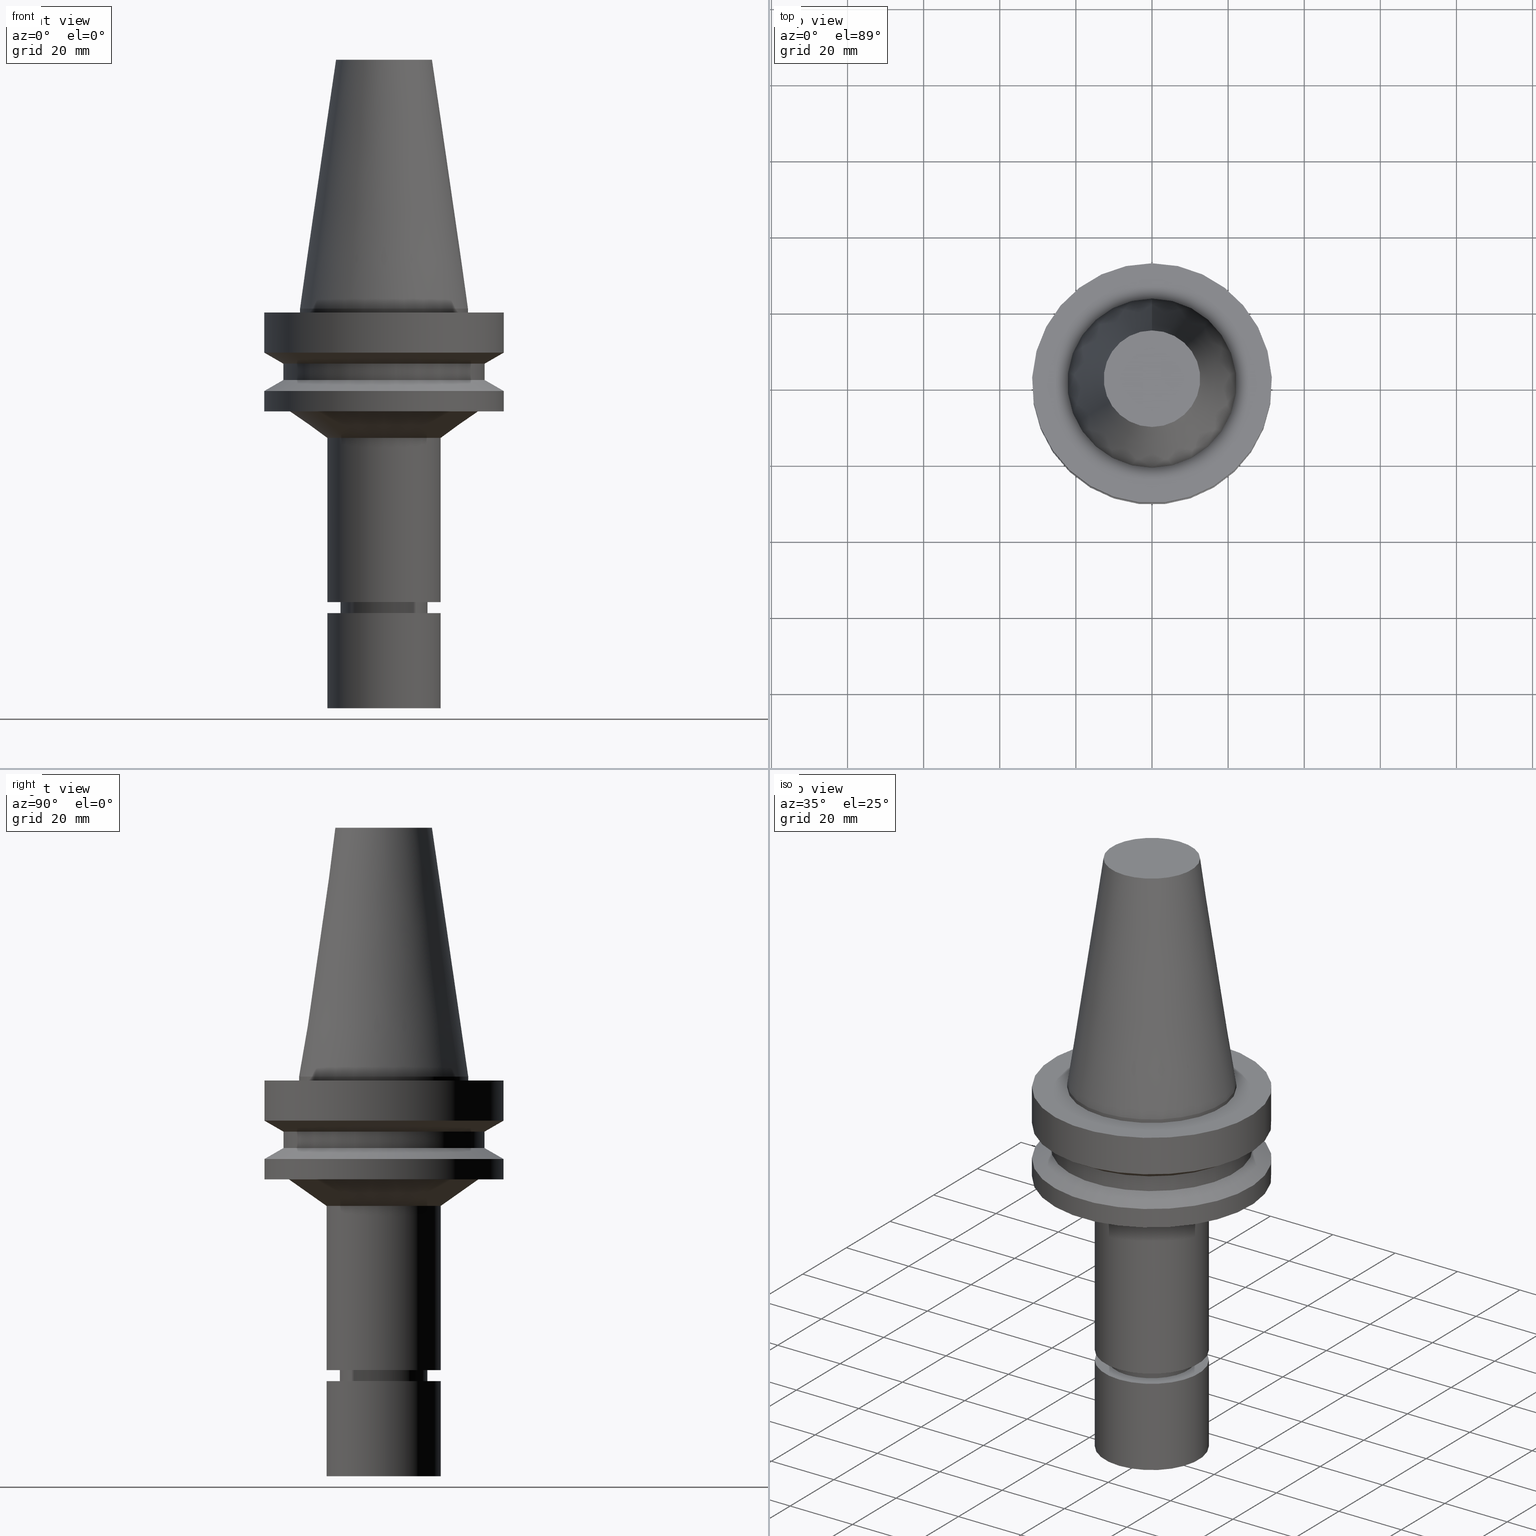
[diagram: canonical four-view strip — front | top / right | iso, engineering-drawing reading convention]
A machine part, canonical four-view strip (front | top / right | iso — engineering-drawing reading convention). The complete STEP part file that produces these views, byte-faithful:
ISO-10303-21;
HEADER;
FILE_DESCRIPTION((''),'1');
FILE_NAME('V:/90_\X2\53D65F9730C730FC30BF\X0\/00_\X2\6DE18DEF30C730FC30BF\X0\/ALL/BBT-BKUS\X2\FF76FF80FF9BFF78FF9E752852A05DE556F3\X0\201801/BBT40-MEGAER/BBT40-MEGAER16-105NL.stp','2018-02-07T01:45:43',(''),(''),'Spatial Interop R21 SP3','Kubotek KeyCreator 2011 V10.0.2 (22737)',' ');
FILE_SCHEMA(('automotive_design'));
ENDSEC;
DATA;
#1=MECHANICAL_DESIGN_GEOMETRIC_PRESENTATION_REPRESENTATION(' ',(#14,#15,#16,#17,#18,#19,#20,#21,#22,#23,#24,#25,#26,#27,#28,#29,#30,#31,#32,#33,#34,#35,#36,#37,#38,#39,#40,#41,#42,#43,#44,#45,#46,#47,#48,#49,#50,#51,#52,#53,#54,#55),#10);
#2=PRODUCT_DEFINITION_CONTEXT('',#56,'design');
#3=APPLICATION_PROTOCOL_DEFINITION('INTERNATIONAL STANDARD','automotive_design',1994,#56);
#4=PRODUCT_CATEGORY_RELATIONSHIP('NONE','NONE',#57,#58);
#5=SHAPE_DEFINITION_REPRESENTATION(#59,#60);
#6=PRODUCT_DEFINITION_CONTEXT('',#61,'design');
#7=APPLICATION_PROTOCOL_DEFINITION('INTERNATIONAL STANDARD','automotive_design',1994,#61);
#8=PRODUCT_CATEGORY_RELATIONSHIP('NONE','NONE',#62,#63);
#9=SHAPE_DEFINITION_REPRESENTATION(#64,#65);
#10= (GEOMETRIC_REPRESENTATION_CONTEXT(3)GLOBAL_UNCERTAINTY_ASSIGNED_CONTEXT((#68))GLOBAL_UNIT_ASSIGNED_CONTEXT((#70,#71,#72))REPRESENTATION_CONTEXT('NONE','WORKSPACE'));
#14=STYLED_ITEM('',(#74,#75),#76);
#15=STYLED_ITEM('',(#77),#78);
#16=STYLED_ITEM('',(#79,#80),#81);
#17=STYLED_ITEM('',(#82,#83),#84);
#18=STYLED_ITEM('',(#85,#86),#87);
#19=STYLED_ITEM('',(#88),#89);
#20=STYLED_ITEM('',(#90),#91);
#21=STYLED_ITEM('',(#92),#93);
#22=STYLED_ITEM('',(#94,#95),#96);
#23=STYLED_ITEM('',(#97),#98);
#24=STYLED_ITEM('',(#99),#100);
#25=STYLED_ITEM('',(#101,#102),#103);
#26=STYLED_ITEM('',(#104,#105),#106);
#27=STYLED_ITEM('',(#107),#108);
#28=STYLED_ITEM('',(#109),#110);
#29=STYLED_ITEM('',(#111,#112),#113);
#30=STYLED_ITEM('',(#114),#115);
#31=STYLED_ITEM('',(#116,#117),#118);
#32=STYLED_ITEM('',(#119,#120),#121);
#33=STYLED_ITEM('',(#122,#123),#124);
#34=STYLED_ITEM('',(#125),#126);
#35=STYLED_ITEM('',(#127,#128),#129);
#36=STYLED_ITEM('',(#130,#131),#132);
#37=STYLED_ITEM('',(#133,#134),#135);
#38=STYLED_ITEM('',(#136,#137),#138);
#39=STYLED_ITEM('',(#139,#140),#141);
#40=STYLED_ITEM('',(#142,#143),#144);
#41=STYLED_ITEM('',(#145,#146),#147);
#42=STYLED_ITEM('',(#148),#149);
#43=STYLED_ITEM('',(#150,#151),#152);
#44=STYLED_ITEM('',(#153),#154);
#45=STYLED_ITEM('',(#155,#156),#157);
#46=STYLED_ITEM('',(#158),#159);
#47=STYLED_ITEM('',(#160,#161),#162);
#48=STYLED_ITEM('',(#163),#164);
#49=STYLED_ITEM('',(#165),#166);
#50=STYLED_ITEM('',(#167,#168),#169);
#51=STYLED_ITEM('',(#170,#171),#172);
#52=STYLED_ITEM('',(#173),#174);
#53=STYLED_ITEM('',(#175),#176);
#54=STYLED_ITEM('',(#177),#178);
#55=STYLED_ITEM('',(#179),#180);
#56=APPLICATION_CONTEXT(' ');
#57=PRODUCT_CATEGORY('part','NONE');
#58=PRODUCT_RELATED_PRODUCT_CATEGORY('detail',' ',(#181));
#59=PRODUCT_DEFINITION_SHAPE('NONE','NONE',#182);
#60=ADVANCED_BREP_SHAPE_REPRESENTATION('Unnamed[1]',(#103,#183),#10);
#61=APPLICATION_CONTEXT(' ');
#62=PRODUCT_CATEGORY('part','NONE');
#63=PRODUCT_RELATED_PRODUCT_CATEGORY('detail',' ',(#184));
#64=PRODUCT_DEFINITION_SHAPE('NONE','NONE',#185);
#65=ADVANCED_BREP_SHAPE_REPRESENTATION('Unnamed[1]',(#144,#186),#10);
#68=UNCERTAINTY_MEASURE_WITH_UNIT(LENGTH_MEASURE(1.0E-006),#70,'','');
#70= (CONVERSION_BASED_UNIT('MILLIMETRE',#189)LENGTH_UNIT()NAMED_UNIT(#192));
#71= (NAMED_UNIT(#194)PLANE_ANGLE_UNIT()SI_UNIT($,.RADIAN.));
#72= (NAMED_UNIT(#194)SOLID_ANGLE_UNIT()SI_UNIT($,.STERADIAN.));
#74=PRESENTATION_STYLE_ASSIGNMENT((#200));
#75=PRESENTATION_STYLE_ASSIGNMENT((#201));
#76=ADVANCED_FACE('Unnamed[1]',(#202,#203),#204,.T.);
#77=PRESENTATION_STYLE_ASSIGNMENT((#205));
#78=EDGE_CURVE('Unnamed[1]',#206,#206,#207,.T.);
#79=PRESENTATION_STYLE_ASSIGNMENT((#208));
#80=PRESENTATION_STYLE_ASSIGNMENT((#209));
#81=ADVANCED_FACE('Unnamed[1]',(#210),#211,.T.);
#82=PRESENTATION_STYLE_ASSIGNMENT((#212));
#83=PRESENTATION_STYLE_ASSIGNMENT((#213));
#84=ADVANCED_FACE('Unnamed[1]',(#214,#215),#216,.T.);
#85=PRESENTATION_STYLE_ASSIGNMENT((#217));
#86=PRESENTATION_STYLE_ASSIGNMENT((#218));
#87=ADVANCED_FACE('Unnamed[1]',(#219,#220),#221,.T.);
#88=PRESENTATION_STYLE_ASSIGNMENT((#222));
#89=EDGE_CURVE('Unnamed[1]',#223,#223,#224,.T.);
#90=PRESENTATION_STYLE_ASSIGNMENT((#225));
#91=EDGE_CURVE('Unnamed[1]',#226,#226,#227,.T.);
#92=PRESENTATION_STYLE_ASSIGNMENT((#228));
#93=EDGE_CURVE('Unnamed[1]',#229,#229,#230,.T.);
#94=PRESENTATION_STYLE_ASSIGNMENT((#231));
#95=PRESENTATION_STYLE_ASSIGNMENT((#232));
#96=ADVANCED_FACE('Unnamed[1]',(#233,#234),#235,.T.);
#97=PRESENTATION_STYLE_ASSIGNMENT((#236));
#98=EDGE_CURVE('Unnamed[1]',#237,#237,#238,.T.);
#99=PRESENTATION_STYLE_ASSIGNMENT((#239));
#100=EDGE_CURVE('Unnamed[1]',#240,#240,#241,.T.);
#101=PRESENTATION_STYLE_ASSIGNMENT((#242));
#102=PRESENTATION_STYLE_ASSIGNMENT((#243));
#103=MANIFOLD_SOLID_BREP('Unnamed[1]',#244);
#104=PRESENTATION_STYLE_ASSIGNMENT((#245));
#105=PRESENTATION_STYLE_ASSIGNMENT((#246));
#106=ADVANCED_FACE('Unnamed[1]',(#247,#248),#249,.T.);
#107=PRESENTATION_STYLE_ASSIGNMENT((#250));
#108=EDGE_CURVE('Unnamed[1]',#251,#251,#252,.T.);
#109=PRESENTATION_STYLE_ASSIGNMENT((#253));
#110=EDGE_CURVE('Unnamed[1]',#254,#254,#255,.T.);
#111=PRESENTATION_STYLE_ASSIGNMENT((#256));
#112=PRESENTATION_STYLE_ASSIGNMENT((#257));
#113=ADVANCED_FACE('Unnamed[1]',(#258,#259),#260,.T.);
#114=PRESENTATION_STYLE_ASSIGNMENT((#261));
#115=EDGE_CURVE('Unnamed[1]',#262,#262,#263,.T.);
#116=PRESENTATION_STYLE_ASSIGNMENT((#264));
#117=PRESENTATION_STYLE_ASSIGNMENT((#265));
#118=ADVANCED_FACE('Unnamed[1]',(#266,#267),#268,.T.);
#119=PRESENTATION_STYLE_ASSIGNMENT((#269));
#120=PRESENTATION_STYLE_ASSIGNMENT((#270));
#121=ADVANCED_FACE('Unnamed[1]',(#271,#272),#273,.T.);
#122=PRESENTATION_STYLE_ASSIGNMENT((#274));
#123=PRESENTATION_STYLE_ASSIGNMENT((#275));
#124=ADVANCED_FACE('Unnamed[1]',(#276),#277,.T.);
#125=PRESENTATION_STYLE_ASSIGNMENT((#278));
#126=EDGE_CURVE('Unnamed[1]',#279,#279,#280,.T.);
#127=PRESENTATION_STYLE_ASSIGNMENT((#281));
#128=PRESENTATION_STYLE_ASSIGNMENT((#282));
#129=ADVANCED_FACE('Unnamed[1]',(#283,#284),#285,.T.);
#130=PRESENTATION_STYLE_ASSIGNMENT((#286));
#131=PRESENTATION_STYLE_ASSIGNMENT((#287));
#132=ADVANCED_FACE('Unnamed[1]',(#288,#289),#290,.T.);
#133=PRESENTATION_STYLE_ASSIGNMENT((#291));
#134=PRESENTATION_STYLE_ASSIGNMENT((#292));
#135=ADVANCED_FACE('Unnamed[1]',(#293,#294),#295,.T.);
#136=PRESENTATION_STYLE_ASSIGNMENT((#296));
#137=PRESENTATION_STYLE_ASSIGNMENT((#297));
#138=ADVANCED_FACE('Unnamed[1]',(#298,#299),#300,.T.);
#139=PRESENTATION_STYLE_ASSIGNMENT((#301));
#140=PRESENTATION_STYLE_ASSIGNMENT((#302));
#141=ADVANCED_FACE('Unnamed[1]',(#303,#304),#305,.T.);
#142=PRESENTATION_STYLE_ASSIGNMENT((#306));
#143=PRESENTATION_STYLE_ASSIGNMENT((#307));
#144=MANIFOLD_SOLID_BREP('Unnamed[1]',#308);
#145=PRESENTATION_STYLE_ASSIGNMENT((#309));
#146=PRESENTATION_STYLE_ASSIGNMENT((#310));
#147=ADVANCED_FACE('Unnamed[1]',(#311,#312),#313,.T.);
#148=PRESENTATION_STYLE_ASSIGNMENT((#314));
#149=EDGE_CURVE('Unnamed[1]',#315,#315,#316,.T.);
#150=PRESENTATION_STYLE_ASSIGNMENT((#317));
#151=PRESENTATION_STYLE_ASSIGNMENT((#318));
#152=ADVANCED_FACE('Unnamed[1]',(#319),#320,.T.);
#153=PRESENTATION_STYLE_ASSIGNMENT((#321));
#154=EDGE_CURVE('Unnamed[1]',#322,#322,#323,.T.);
#155=PRESENTATION_STYLE_ASSIGNMENT((#324));
#156=PRESENTATION_STYLE_ASSIGNMENT((#325));
#157=ADVANCED_FACE('Unnamed[1]',(#326,#327),#328,.T.);
#158=PRESENTATION_STYLE_ASSIGNMENT((#329));
#159=EDGE_CURVE('Unnamed[1]',#330,#330,#331,.T.);
#160=PRESENTATION_STYLE_ASSIGNMENT((#332));
#161=PRESENTATION_STYLE_ASSIGNMENT((#333));
#162=ADVANCED_FACE('Unnamed[1]',(#334),#335,.T.);
#163=PRESENTATION_STYLE_ASSIGNMENT((#336));
#164=EDGE_CURVE('Unnamed[1]',#337,#337,#338,.T.);
#165=PRESENTATION_STYLE_ASSIGNMENT((#339));
#166=EDGE_CURVE('Unnamed[1]',#340,#340,#341,.T.);
#167=PRESENTATION_STYLE_ASSIGNMENT((#342));
#168=PRESENTATION_STYLE_ASSIGNMENT((#343));
#169=ADVANCED_FACE('Unnamed[1]',(#344,#345),#346,.T.);
#170=PRESENTATION_STYLE_ASSIGNMENT((#347));
#171=PRESENTATION_STYLE_ASSIGNMENT((#348));
#172=ADVANCED_FACE('Unnamed[1]',(#349,#350),#351,.T.);
#173=PRESENTATION_STYLE_ASSIGNMENT((#352));
#174=EDGE_CURVE('Unnamed[1]',#353,#353,#354,.T.);
#175=PRESENTATION_STYLE_ASSIGNMENT((#355));
#176=EDGE_CURVE('Unnamed[1]',#356,#356,#357,.T.);
#177=PRESENTATION_STYLE_ASSIGNMENT((#358));
#178=EDGE_CURVE('Unnamed[1]',#359,#359,#360,.T.);
#179=PRESENTATION_STYLE_ASSIGNMENT((#361));
#180=EDGE_CURVE('Unnamed[1]',#362,#362,#363,.T.);
#181=PRODUCT('Unnamed[1]','Unnamed[1]','PART-Unnamed[1]-DESC',(#364));
#182=PRODUCT_DEFINITION('NONE','NONE',#365,#2);
#183=AXIS2_PLACEMENT_3D('',#366,#367,#368);
#184=PRODUCT('Unnamed[1]','Unnamed[1]','PART-Unnamed[1]-DESC',(#369));
#185=PRODUCT_DEFINITION('NONE','NONE',#370,#6);
#186=AXIS2_PLACEMENT_3D('',#371,#372,#373);
#189=LENGTH_MEASURE_WITH_UNIT(LENGTH_MEASURE(1.0),#374);
#192=DIMENSIONAL_EXPONENTS(1.0,0.0,0.0,0.0,0.0,0.0,0.0);
#194=DIMENSIONAL_EXPONENTS(0.0,0.0,0.0,0.0,0.0,0.0,0.0);
#200=SURFACE_STYLE_USAGE(.BOTH.,#375);
#201=CURVE_STYLE('',#376,POSITIVE_LENGTH_MEASURE(1000.0),#377);
#202=FACE_BOUND('',#378,.T.);
#203=FACE_BOUND('',#379,.T.);
#204=CONICAL_SURFACE('',#380,19.9344124647526,0.956240827688237);
#205=CURVE_STYLE('',#381,POSITIVE_LENGTH_MEASURE(1000.0),#382);
#206=VERTEX_POINT('',#383);
#207=CIRCLE('',#384,9.89999999999953);
#208=SURFACE_STYLE_USAGE(.BOTH.,#385);
#209=CURVE_STYLE('',#386,POSITIVE_LENGTH_MEASURE(1000.0),#387);
#210=FACE_OUTER_BOUND('',#388,.T.);
#211=PLANE('',#389);
#212=SURFACE_STYLE_USAGE(.BOTH.,#390);
#213=CURVE_STYLE('',#391,POSITIVE_LENGTH_MEASURE(1000.0),#392);
#214=FACE_BOUND('',#393,.T.);
#215=FACE_OUTER_BOUND('',#394,.T.);
#216=PLANE('',#395);
#217=SURFACE_STYLE_USAGE(.BOTH.,#396);
#218=CURVE_STYLE('',#397,POSITIVE_LENGTH_MEASURE(1000.0),#398);
#219=FACE_BOUND('',#399,.T.);
#220=FACE_BOUND('',#400,.T.);
#221=CYLINDRICAL_SURFACE('',#401,11.4999999999963);
#222=CURVE_STYLE('',#402,POSITIVE_LENGTH_MEASURE(1000.0),#403);
#223=VERTEX_POINT('',#404);
#224=CIRCLE('',#405,31.5000000000003);
#225=CURVE_STYLE('',#406,POSITIVE_LENGTH_MEASURE(1000.0),#407);
#226=VERTEX_POINT('',#408);
#227=CIRCLE('',#409,26.4999999999994);
#228=CURVE_STYLE('',#410,POSITIVE_LENGTH_MEASURE(1000.0),#411);
#229=VERTEX_POINT('',#412);
#230=CIRCLE('',#413,15.0000000000004);
#231=SURFACE_STYLE_USAGE(.BOTH.,#414);
#232=CURVE_STYLE('',#415,POSITIVE_LENGTH_MEASURE(1000.0),#416);
#233=FACE_BOUND('',#417,.T.);
#234=FACE_BOUND('',#418,.T.);
#235=CYLINDRICAL_SURFACE('',#419,26.4999999999997);
#236=CURVE_STYLE('',#420,POSITIVE_LENGTH_MEASURE(1000.0),#421);
#237=VERTEX_POINT('',#422);
#238=CIRCLE('',#423,11.4999999999906);
#239=CURVE_STYLE('',#424,POSITIVE_LENGTH_MEASURE(1000.0),#425);
#240=VERTEX_POINT('',#426);
#241=CIRCLE('',#427,11.0000000000002);
#242=SURFACE_STYLE_USAGE(.BOTH.,#428);
#243=CURVE_STYLE('',#429,POSITIVE_LENGTH_MEASURE(1000.0),#430);
#244=CLOSED_SHELL('',(#81,#157,#138,#132,#129,#147,#96,#172,#121,#84,#76,#118,#106,#87,#113,#141,#135,#162));
#245=SURFACE_STYLE_USAGE(.BOTH.,#431);
#246=CURVE_STYLE('',#432,POSITIVE_LENGTH_MEASURE(1000.0),#433);
#247=FACE_BOUND('',#434,.T.);
#248=FACE_OUTER_BOUND('',#435,.T.);
#249=PLANE('',#436);
#250=CURVE_STYLE('',#437,POSITIVE_LENGTH_MEASURE(1000.0),#438);
#251=VERTEX_POINT('',#439);
#252=CIRCLE('',#440,24.8688249295048);
#253=CURVE_STYLE('',#441,POSITIVE_LENGTH_MEASURE(1000.0),#442);
#254=VERTEX_POINT('',#443);
#255=CIRCLE('',#444,31.4999999999996);
#256=SURFACE_STYLE_USAGE(.BOTH.,#445);
#257=CURVE_STYLE('',#446,POSITIVE_LENGTH_MEASURE(1000.0),#447);
#258=FACE_BOUND('',#448,.T.);
#259=FACE_BOUND('',#449,.T.);
#260=CONICAL_SURFACE('',#450,11.2500000000009,1.04719755118913);
#261=CURVE_STYLE('',#451,POSITIVE_LENGTH_MEASURE(1000.0),#452);
#262=VERTEX_POINT('',#453);
#263=CIRCLE('',#454,26.5);
#264=SURFACE_STYLE_USAGE(.BOTH.,#455);
#265=CURVE_STYLE('',#456,POSITIVE_LENGTH_MEASURE(1000.0),#457);
#266=FACE_BOUND('',#458,.T.);
#267=FACE_BOUND('',#459,.T.);
#268=CYLINDRICAL_SURFACE('',#460,15.0000000000002);
#269=SURFACE_STYLE_USAGE(.BOTH.,#461);
#270=CURVE_STYLE('',#462,POSITIVE_LENGTH_MEASURE(1000.0),#463);
#271=FACE_BOUND('',#464,.T.);
#272=FACE_BOUND('',#465,.T.);
#273=CYLINDRICAL_SURFACE('',#466,31.5000000000005);
#274=SURFACE_STYLE_USAGE(.BOTH.,#467);
#275=CURVE_STYLE('',#468,POSITIVE_LENGTH_MEASURE(1000.0),#469);
#276=FACE_OUTER_BOUND('',#470,.T.);
#277=PLANE('',#471);
#278=CURVE_STYLE('',#472,POSITIVE_LENGTH_MEASURE(1000.0),#473);
#279=VERTEX_POINT('',#474);
#280=CIRCLE('',#475,12.6875000000001);
#281=SURFACE_STYLE_USAGE(.BOTH.,#476);
#282=CURVE_STYLE('',#477,POSITIVE_LENGTH_MEASURE(1000.0),#478);
#283=FACE_BOUND('',#479,.T.);
#284=FACE_BOUND('',#480,.T.);
#285=CYLINDRICAL_SURFACE('',#481,31.5);
#286=SURFACE_STYLE_USAGE(.BOTH.,#482);
#287=CURVE_STYLE('',#483,POSITIVE_LENGTH_MEASURE(1000.0),#484);
#288=FACE_OUTER_BOUND('',#485,.T.);
#289=FACE_BOUND('',#486,.T.);
#290=PLANE('',#487);
#291=SURFACE_STYLE_USAGE(.BOTH.,#488);
#292=CURVE_STYLE('',#489,POSITIVE_LENGTH_MEASURE(1000.0),#490);
#293=FACE_BOUND('',#491,.T.);
#294=FACE_BOUND('',#492,.T.);
#295=CONICAL_SURFACE('',#493,10.4499999999999,0.523598775598206);
#296=SURFACE_STYLE_USAGE(.BOTH.,#494);
#297=CURVE_STYLE('',#495,POSITIVE_LENGTH_MEASURE(1000.0),#496);
#298=FACE_BOUND('',#497,.T.);
#299=FACE_BOUND('',#498,.T.);
#300=CYLINDRICAL_SURFACE('',#499,22.225);
#301=SURFACE_STYLE_USAGE(.BOTH.,#500);
#302=CURVE_STYLE('',#501,POSITIVE_LENGTH_MEASURE(1000.0),#502);
#303=FACE_BOUND('',#503,.T.);
#304=FACE_BOUND('',#504,.T.);
#305=CYLINDRICAL_SURFACE('',#505,11.0);
#306=SURFACE_STYLE_USAGE(.BOTH.,#506);
#307=CURVE_STYLE('',#507,POSITIVE_LENGTH_MEASURE(1000.0),#508);
#308=CLOSED_SHELL('',(#124,#152,#169));
#309=SURFACE_STYLE_USAGE(.BOTH.,#509);
#310=CURVE_STYLE('',#510,POSITIVE_LENGTH_MEASURE(1000.0),#511);
#311=FACE_BOUND('',#512,.T.);
#312=FACE_BOUND('',#513,.T.);
#313=CONICAL_SURFACE('',#514,28.9999999999998,1.04719755119657);
#314=CURVE_STYLE('',#515,POSITIVE_LENGTH_MEASURE(1000.0),#516);
#315=VERTEX_POINT('',#517);
#316=CIRCLE('',#518,10.9999999999998);
#317=SURFACE_STYLE_USAGE(.BOTH.,#519);
#318=CURVE_STYLE('',#520,POSITIVE_LENGTH_MEASURE(1000.0),#521);
#319=FACE_OUTER_BOUND('',#522,.T.);
#320=PLANE('',#523);
#321=CURVE_STYLE('',#524,POSITIVE_LENGTH_MEASURE(1000.0),#525);
#322=VERTEX_POINT('',#526);
#323=CIRCLE('',#527,15.0);
#324=SURFACE_STYLE_USAGE(.BOTH.,#528);
#325=CURVE_STYLE('',#529,POSITIVE_LENGTH_MEASURE(1000.0),#530);
#326=FACE_BOUND('',#531,.T.);
#327=FACE_BOUND('',#532,.T.);
#328=CONICAL_SURFACE('',#533,17.45625,0.144812498238936);
#329=CURVE_STYLE('',#534,POSITIVE_LENGTH_MEASURE(1000.0),#535);
#330=VERTEX_POINT('',#536);
#331=CIRCLE('',#537,11.500000000002);
#332=SURFACE_STYLE_USAGE(.BOTH.,#538);
#333=CURVE_STYLE('',#539,POSITIVE_LENGTH_MEASURE(1000.0),#540);
#334=FACE_OUTER_BOUND('',#541,.T.);
#335=PLANE('',#542);
#336=CURVE_STYLE('',#543,POSITIVE_LENGTH_MEASURE(1000.0),#544);
#337=VERTEX_POINT('',#545);
#338=CIRCLE('',#546,31.5000000000003);
#339=CURVE_STYLE('',#547,POSITIVE_LENGTH_MEASURE(1000.0),#548);
#340=VERTEX_POINT('',#549);
#341=CIRCLE('',#550,31.5000000000006);
#342=SURFACE_STYLE_USAGE(.BOTH.,#551);
#343=CURVE_STYLE('',#552,POSITIVE_LENGTH_MEASURE(1000.0),#553);
#344=FACE_BOUND('',#554,.T.);
#345=FACE_BOUND('',#555,.T.);
#346=CYLINDRICAL_SURFACE('',#556,15.0);
#347=SURFACE_STYLE_USAGE(.BOTH.,#557);
#348=CURVE_STYLE('',#558,POSITIVE_LENGTH_MEASURE(1000.0),#559);
#349=FACE_BOUND('',#560,.T.);
#350=FACE_BOUND('',#561,.T.);
#351=CONICAL_SURFACE('',#562,29.0000000000003,1.04719755119651);
#352=CURVE_STYLE('',#563,POSITIVE_LENGTH_MEASURE(1000.0),#564);
#353=VERTEX_POINT('',#565);
#354=CIRCLE('',#566,22.225);
#355=CURVE_STYLE('',#567,POSITIVE_LENGTH_MEASURE(1000.0),#568);
#356=VERTEX_POINT('',#569);
#357=CIRCLE('',#570,22.225);
#358=CURVE_STYLE('',#571,POSITIVE_LENGTH_MEASURE(1000.0),#572);
#359=VERTEX_POINT('',#573);
#360=CIRCLE('',#574,14.9999999999999);
#361=CURVE_STYLE('',#575,POSITIVE_LENGTH_MEASURE(1000.0),#576);
#362=VERTEX_POINT('',#577);
#363=CIRCLE('',#578,15.0);
#364=PRODUCT_CONTEXT('',#56,'mechanical');
#365=PRODUCT_DEFINITION_FORMATION_WITH_SPECIFIED_SOURCE(' ','NONE',#181,.NOT_KNOWN.);
#366=CARTESIAN_POINT('',(0.0,0.0,0.0));
#367=DIRECTION('',(0.0,0.0,1.0));
#368=DIRECTION('',(1.0,0.0,0.0));
#369=PRODUCT_CONTEXT('',#61,'mechanical');
#370=PRODUCT_DEFINITION_FORMATION_WITH_SPECIFIED_SOURCE(' ','NONE',#184,.NOT_KNOWN.);
#371=CARTESIAN_POINT('',(0.0,0.0,0.0));
#372=DIRECTION('',(0.0,0.0,1.0));
#373=DIRECTION('',(1.0,0.0,0.0));
#374= (NAMED_UNIT(#192)LENGTH_UNIT()SI_UNIT(.MILLI.,.METRE.));
#375=SURFACE_SIDE_STYLE('',(#580));
#376=DRAUGHTING_PRE_DEFINED_CURVE_FONT('continuous');
#377=COLOUR_RGB('',0.0,1.0,0.0);
#378=EDGE_LOOP('',(#581));
#379=EDGE_LOOP('',(#582));
#380=AXIS2_PLACEMENT_3D('',#583,#584,#585);
#381=DRAUGHTING_PRE_DEFINED_CURVE_FONT('continuous');
#382=COLOUR_RGB('',0.0,1.0,0.0);
#383=CARTESIAN_POINT('',(5.89055110389872E-015,9.8999999999996,-96.1999999999992));
#384=AXIS2_PLACEMENT_3D('',#586,#587,#588);
#385=SURFACE_SIDE_STYLE('',(#589));
#386=DRAUGHTING_PRE_DEFINED_CURVE_FONT('continuous');
#387=COLOUR_RGB('',0.0,1.0,0.0);
#388=EDGE_LOOP('',(#590));
#389=AXIS2_PLACEMENT_3D('',#591,#592,#593);
#390=SURFACE_SIDE_STYLE('',(#594));
#391=DRAUGHTING_PRE_DEFINED_CURVE_FONT('continuous');
#392=COLOUR_RGB('',0.0,1.0,0.0);
#393=EDGE_LOOP('',(#595));
#394=EDGE_LOOP('',(#596));
#395=AXIS2_PLACEMENT_3D('',#597,#598,#599);
#396=SURFACE_SIDE_STYLE('',(#600));
#397=DRAUGHTING_PRE_DEFINED_CURVE_FONT('continuous');
#398=COLOUR_RGB('',0.0,1.0,0.0);
#399=EDGE_LOOP('',(#601));
#400=EDGE_LOOP('',(#602));
#401=AXIS2_PLACEMENT_3D('',#603,#604,#605);
#402=DRAUGHTING_PRE_DEFINED_CURVE_FONT('continuous');
#403=COLOUR_RGB('',0.0,1.0,0.0);
#404=CARTESIAN_POINT('',(1.65327317884891E-015,31.5000000000004,-26.9999999999998));
#405=AXIS2_PLACEMENT_3D('',#606,#607,#608);
#406=DRAUGHTING_PRE_DEFINED_CURVE_FONT('continuous');
#407=COLOUR_RGB('',0.0,1.0,0.0);
#408=CARTESIAN_POINT('',(8.8494551369045E-016,26.4999999999995,-14.4522569986152));
#409=AXIS2_PLACEMENT_3D('',#609,#610,#611);
#410=DRAUGHTING_PRE_DEFINED_CURVE_FONT('continuous');
#411=COLOUR_RGB('',0.0,1.0,0.0);
#412=CARTESIAN_POINT('',(2.07973442388956E-015,15.0000000000004,-33.9646406676204));
#413=AXIS2_PLACEMENT_3D('',#612,#613,#614);
#414=SURFACE_SIDE_STYLE('',(#615));
#415=DRAUGHTING_PRE_DEFINED_CURVE_FONT('continuous');
#416=COLOUR_RGB('',0.0,1.0,0.0);
#417=EDGE_LOOP('',(#616));
#418=EDGE_LOOP('',(#617));
#419=AXIS2_PLACEMENT_3D('',#618,#619,#620);
#420=DRAUGHTING_PRE_DEFINED_CURVE_FONT('continuous');
#421=COLOUR_RGB('',0.0,1.0,0.0);
#422=CARTESIAN_POINT('',(4.72101341071305E-015,11.4999999999907,-77.1000000000001));
#423=AXIS2_PLACEMENT_3D('',#621,#622,#623);
#424=DRAUGHTING_PRE_DEFINED_CURVE_FONT('continuous');
#425=COLOUR_RGB('',0.0,1.0,0.0);
#426=CARTESIAN_POINT('',(5.77388782763889E-015,11.0000000000003,-94.2947441116719));
#427=AXIS2_PLACEMENT_3D('',#624,#625,#626);
#428=SURFACE_SIDE_STYLE('',(#627));
#429=DRAUGHTING_PRE_DEFINED_CURVE_FONT('continuous');
#430=COLOUR_RGB('',0.0,1.0,0.0);
#431=SURFACE_SIDE_STYLE('',(#628));
#432=DRAUGHTING_PRE_DEFINED_CURVE_FONT('continuous');
#433=COLOUR_RGB('',0.0,1.0,0.0);
#434=EDGE_LOOP('',(#629));
#435=EDGE_LOOP('',(#630));
#436=AXIS2_PLACEMENT_3D('',#631,#632,#633);
#437=DRAUGHTING_PRE_DEFINED_CURVE_FONT('continuous');
#438=COLOUR_RGB('',0.0,1.0,0.0);
#439=CARTESIAN_POINT('',(1.65327317884891E-015,24.8688249295049,-26.9999999999998));
#440=AXIS2_PLACEMENT_3D('',#634,#635,#636);
#441=DRAUGHTING_PRE_DEFINED_CURVE_FONT('continuous');
#442=COLOUR_RGB('',0.0,1.0,0.0);
#443=CARTESIAN_POINT('',(6.12323399573568E-017,31.4999999999997,-0.999999999999825));
#444=AXIS2_PLACEMENT_3D('',#637,#638,#639);
#445=SURFACE_SIDE_STYLE('',(#640));
#446=DRAUGHTING_PRE_DEFINED_CURVE_FONT('continuous');
#447=COLOUR_RGB('',0.0,1.0,0.0);
#448=EDGE_LOOP('',(#641));
#449=EDGE_LOOP('',(#642));
#450=AXIS2_PLACEMENT_3D('',#643,#644,#645);
#451=DRAUGHTING_PRE_DEFINED_CURVE_FONT('continuous');
#452=COLOUR_RGB('',0.0,1.0,0.0);
#453=CARTESIAN_POINT('',(1.1479681728942E-015,26.5,-18.7477430013855));
#454=AXIS2_PLACEMENT_3D('',#646,#647,#648);
#455=SURFACE_SIDE_STYLE('',(#649));
#456=DRAUGHTING_PRE_DEFINED_CURVE_FONT('continuous');
#457=COLOUR_RGB('',0.0,1.0,0.0);
#458=EDGE_LOOP('',(#650));
#459=EDGE_LOOP('',(#651));
#460=AXIS2_PLACEMENT_3D('',#652,#653,#654);
#461=SURFACE_SIDE_STYLE('',(#655));
#462=DRAUGHTING_PRE_DEFINED_CURVE_FONT('continuous');
#463=COLOUR_RGB('',0.0,1.0,0.0);
#464=EDGE_LOOP('',(#656));
#465=EDGE_LOOP('',(#657));
#466=AXIS2_PLACEMENT_3D('',#658,#659,#660);
#467=SURFACE_SIDE_STYLE('',(#661));
#468=DRAUGHTING_PRE_DEFINED_CURVE_FONT('continuous');
#469=COLOUR_RGB('',0.0,1.0,0.0);
#470=EDGE_LOOP('',(#662));
#471=AXIS2_PLACEMENT_3D('',#663,#664,#665);
#472=DRAUGHTING_PRE_DEFINED_CURVE_FONT('continuous');
#473=COLOUR_RGB('',0.0,1.0,0.0);
#474=CARTESIAN_POINT('',(-4.00459503321185E-015,12.6875000000002,65.4000000000001));
#475=AXIS2_PLACEMENT_3D('',#666,#667,#668);
#476=SURFACE_SIDE_STYLE('',(#669));
#477=DRAUGHTING_PRE_DEFINED_CURVE_FONT('continuous');
#478=COLOUR_RGB('',0.0,1.0,0.0);
#479=EDGE_LOOP('',(#670));
#480=EDGE_LOOP('',(#671));
#481=AXIS2_PLACEMENT_3D('',#672,#673,#674);
#482=SURFACE_SIDE_STYLE('',(#675));
#483=DRAUGHTING_PRE_DEFINED_CURVE_FONT('continuous');
#484=COLOUR_RGB('',0.0,1.0,0.0);
#485=EDGE_LOOP('',(#676));
#486=EDGE_LOOP('',(#677));
#487=AXIS2_PLACEMENT_3D('',#678,#679,#680);
#488=SURFACE_SIDE_STYLE('',(#681));
#489=DRAUGHTING_PRE_DEFINED_CURVE_FONT('continuous');
#490=COLOUR_RGB('',0.0,1.0,0.0);
#491=EDGE_LOOP('',(#682));
#492=EDGE_LOOP('',(#683));
#493=AXIS2_PLACEMENT_3D('',#684,#685,#686);
#494=SURFACE_SIDE_STYLE('',(#687));
#495=DRAUGHTING_PRE_DEFINED_CURVE_FONT('continuous');
#496=COLOUR_RGB('',0.0,1.0,0.0);
#497=EDGE_LOOP('',(#688));
#498=EDGE_LOOP('',(#689));
#499=AXIS2_PLACEMENT_3D('',#690,#691,#692);
#500=SURFACE_SIDE_STYLE('',(#693));
#501=DRAUGHTING_PRE_DEFINED_CURVE_FONT('continuous');
#502=COLOUR_RGB('',0.0,1.0,0.0);
#503=EDGE_LOOP('',(#694));
#504=EDGE_LOOP('',(#695));
#505=AXIS2_PLACEMENT_3D('',#696,#697,#698);
#506=SURFACE_SIDE_STYLE('',(#699));
#507=DRAUGHTING_PRE_DEFINED_CURVE_FONT('continuous');
#508=COLOUR_RGB('',0.0,1.0,0.0);
#509=SURFACE_SIDE_STYLE('',(#700));
#510=DRAUGHTING_PRE_DEFINED_CURVE_FONT('continuous');
#511=COLOUR_RGB('',0.0,1.0,0.0);
#512=EDGE_LOOP('',(#701));
#513=EDGE_LOOP('',(#702));
#514=AXIS2_PLACEMENT_3D('',#703,#704,#705);
#515=DRAUGHTING_PRE_DEFINED_CURVE_FONT('continuous');
#516=COLOUR_RGB('',0.0,1.0,0.0);
#517=CARTESIAN_POINT('',(5.09453068445289E-015,10.9999999999999,-83.1999999999984));
#518=AXIS2_PLACEMENT_3D('',#706,#707,#708);
#519=SURFACE_SIDE_STYLE('',(#709));
#520=DRAUGHTING_PRE_DEFINED_CURVE_FONT('continuous');
#521=COLOUR_RGB('',0.0,1.0,0.0);
#522=EDGE_LOOP('',(#710));
#523=AXIS2_PLACEMENT_3D('',#711,#712,#713);
#524=DRAUGHTING_PRE_DEFINED_CURVE_FONT('continuous');
#525=COLOUR_RGB('',0.0,1.0,0.0);
#526=CARTESIAN_POINT('',(4.72101341071301E-015,15.0000000000001,-77.0999999999993));
#527=AXIS2_PLACEMENT_3D('',#714,#715,#716);
#528=SURFACE_SIDE_STYLE('',(#717));
#529=DRAUGHTING_PRE_DEFINED_CURVE_FONT('continuous');
#530=COLOUR_RGB('',0.0,1.0,0.0);
#531=EDGE_LOOP('',(#718));
#532=EDGE_LOOP('',(#719));
#533=AXIS2_PLACEMENT_3D('',#720,#721,#722);
#534=DRAUGHTING_PRE_DEFINED_CURVE_FONT('continuous');
#535=COLOUR_RGB('',0.0,1.0,0.0);
#536=CARTESIAN_POINT('',(5.07685443047376E-015,11.5000000000021,-82.9113248653973));
#537=AXIS2_PLACEMENT_3D('',#723,#724,#725);
#538=SURFACE_SIDE_STYLE('',(#726));
#539=DRAUGHTING_PRE_DEFINED_CURVE_FONT('continuous');
#540=COLOUR_RGB('',0.0,1.0,0.0);
#541=EDGE_LOOP('',(#727));
#542=AXIS2_PLACEMENT_3D('',#728,#729,#730);
#543=DRAUGHTING_PRE_DEFINED_CURVE_FONT('continuous');
#544=COLOUR_RGB('',0.0,1.0,0.0);
#545=CARTESIAN_POINT('',(7.08182973902924E-016,31.5000000000004,-11.5655056526664));
#546=AXIS2_PLACEMENT_3D('',#731,#732,#733);
#547=DRAUGHTING_PRE_DEFINED_CURVE_FONT('continuous');
#548=COLOUR_RGB('',0.0,1.0,0.0);
#549=CARTESIAN_POINT('',(1.32473071268174E-015,31.5000000000007,-21.6344943473346));
#550=AXIS2_PLACEMENT_3D('',#734,#735,#736);
#551=SURFACE_SIDE_STYLE('',(#737));
#552=DRAUGHTING_PRE_DEFINED_CURVE_FONT('continuous');
#553=COLOUR_RGB('',0.0,1.0,0.0);
#554=EDGE_LOOP('',(#738));
#555=EDGE_LOOP('',(#739));
#556=AXIS2_PLACEMENT_3D('',#740,#741,#742);
#557=SURFACE_SIDE_STYLE('',(#743));
#558=DRAUGHTING_PRE_DEFINED_CURVE_FONT('continuous');
#559=COLOUR_RGB('',0.0,1.0,0.0);
#560=EDGE_LOOP('',(#744));
#561=EDGE_LOOP('',(#745));
#562=AXIS2_PLACEMENT_3D('',#746,#747,#748);
#563=DRAUGHTING_PRE_DEFINED_CURVE_FONT('continuous');
#564=COLOUR_RGB('',0.0,1.0,0.0);
#565=CARTESIAN_POINT('',(1.71319921032766E-029,22.2250000000001,-2.8153873565375E-013));
#566=AXIS2_PLACEMENT_3D('',#749,#750,#751);
#567=DRAUGHTING_PRE_DEFINED_CURVE_FONT('continuous');
#568=COLOUR_RGB('',0.0,1.0,0.0);
#569=CARTESIAN_POINT('',(6.12323399573622E-017,22.2250000000001,-0.999999999999912));
#570=AXIS2_PLACEMENT_3D('',#752,#753,#754);
#571=DRAUGHTING_PRE_DEFINED_CURVE_FONT('continuous');
#572=COLOUR_RGB('',0.0,1.0,0.0);
#573=CARTESIAN_POINT('',(6.4293956955236E-015,15.0,-105.0));
#574=AXIS2_PLACEMENT_3D('',#755,#756,#757);
#575=DRAUGHTING_PRE_DEFINED_CURVE_FONT('continuous');
#576=COLOUR_RGB('',0.0,1.0,0.0);
#577=CARTESIAN_POINT('',(4.89858719658941E-015,15.0000000000001,-80.0));
#578=AXIS2_PLACEMENT_3D('',#758,#759,#760);
#580=SURFACE_STYLE_FILL_AREA(#761);
#581=ORIENTED_EDGE('',*,*,#93,.F.);
#582=ORIENTED_EDGE('',*,*,#108,.T.);
#583=CARTESIAN_POINT('',(1.86650380136924E-015,7.40711975281859E-014,-30.4823203338101));
#584=DIRECTION('',(-6.12323399573677E-017,3.19681415020243E-017,1.0));
#585=DIRECTION('',(-2.86966862251183E-033,1.0,-3.19681415020243E-017));
#586=CARTESIAN_POINT('',(5.89055110389872E-015,7.19703254454324E-014,-96.1999999999992));
#587=DIRECTION('',(6.12323399573677E-017,-3.19681415020243E-017,-1.0));
#588=DIRECTION('',(-2.86966862251184E-033,1.0,-3.19681415020243E-017));
#589=SURFACE_STYLE_FILL_AREA(#762);
#590=ORIENTED_EDGE('',*,*,#126,.F.);
#591=CARTESIAN_POINT('',(-4.00459503321185E-015,6.34375000000014,65.4000000000001));
#592=DIRECTION('',(-6.12323399573677E-017,9.97602686800683E-016,1.0));
#593=DIRECTION('',(-5.62583941297938E-032,-1.0,9.97602686800683E-016));
#594=SURFACE_STYLE_FILL_AREA(#763);
#595=ORIENTED_EDGE('',*,*,#108,.F.);
#596=ORIENTED_EDGE('',*,*,#89,.T.);
#597=CARTESIAN_POINT('',(1.65327317884891E-015,28.1844124647526,-26.9999999999998));
#598=DIRECTION('',(6.12323399573677E-017,3.33702044811438E-015,-1.0));
#599=DIRECTION('',(-2.09160723254396E-031,1.0,3.33702044811438E-015));
#600=SURFACE_STYLE_FILL_AREA(#764);
#601=ORIENTED_EDGE('',*,*,#159,.F.);
#602=ORIENTED_EDGE('',*,*,#98,.T.);
#603=CARTESIAN_POINT('',(4.89893392059341E-015,7.24880283203154E-014,-80.0056624326987));
#604=DIRECTION('',(6.12323399573677E-017,-3.19681415020243E-017,-1.0));
#605=DIRECTION('',(-2.86966862251183E-033,1.0,-3.19681415020243E-017));
#606=CARTESIAN_POINT('',(1.65327317884891E-015,7.41825208373725E-014,-26.9999999999998));
#607=DIRECTION('',(6.12323399573677E-017,-3.19681415020244E-017,-1.0));
#608=DIRECTION('',(-2.86966862251183E-033,1.0,-3.19681415020244E-017));
#609=CARTESIAN_POINT('',(8.8494551369045E-016,7.45836488611718E-014,-14.4522569986152));
#610=DIRECTION('',(6.12323399573677E-017,-3.19681415020244E-017,-1.0));
#611=DIRECTION('',(-2.86966862251183E-033,1.0,-3.19681415020244E-017));
#612=CARTESIAN_POINT('',(2.07973442388956E-015,7.39598742189992E-014,-33.9646406676204));
#613=DIRECTION('',(6.12323399573677E-017,-3.19681415020243E-017,-1.0));
#614=DIRECTION('',(-2.86966862251183E-033,1.0,-3.19681415020243E-017));
#615=SURFACE_STYLE_FILL_AREA(#765);
#616=ORIENTED_EDGE('',*,*,#115,.F.);
#617=ORIENTED_EDGE('',*,*,#91,.T.);
#618=CARTESIAN_POINT('',(1.01645684329232E-015,7.45149895089935E-014,-16.6000000000004));
#619=DIRECTION('',(6.12323399573677E-017,-3.19681415020243E-017,-1.0));
#620=DIRECTION('',(-2.86966862251183E-033,1.0,-3.19681415020243E-017));
#621=CARTESIAN_POINT('',(4.72101341071305E-015,7.25809169481211E-014,-77.1000000000001));
#622=DIRECTION('',(6.12323399573677E-017,-3.19681415020243E-017,-1.0));
#623=DIRECTION('',(-2.86966862251183E-033,1.0,-3.19681415020243E-017));
#624=CARTESIAN_POINT('',(5.77388782763889E-015,7.2031232935268E-014,-94.2947441116719));
#625=DIRECTION('',(6.12323399573677E-017,-3.19681415020243E-017,-1.0));
#626=DIRECTION('',(-2.86966862251183E-033,1.0,-3.19681415020243E-017));
#627=SURFACE_STYLE_FILL_AREA(#766);
#628=SURFACE_STYLE_FILL_AREA(#767);
#629=ORIENTED_EDGE('',*,*,#98,.F.);
#630=ORIENTED_EDGE('',*,*,#154,.T.);
#631=CARTESIAN_POINT('',(4.72101341071303E-015,13.2499999999954,-77.0999999999997));
#632=DIRECTION('',(6.12323399573677E-017,2.07194919100876E-013,-1.0));
#633=DIRECTION('',(-1.26918568765549E-029,1.0,2.07194919100876E-013));
#634=CARTESIAN_POINT('',(1.65327317884891E-015,7.41825208373725E-014,-26.9999999999998));
#635=DIRECTION('',(6.12323399573677E-017,-3.19681415020243E-017,-1.0));
#636=DIRECTION('',(-2.86966862251183E-033,1.0,-3.19681415020244E-017));
#637=CARTESIAN_POINT('',(6.12323399573572E-017,7.50136925164251E-014,-0.999999999999829));
#638=DIRECTION('',(6.12323399573677E-017,-3.19681415020244E-017,-1.0));
#639=DIRECTION('',(-2.86966862251183E-033,1.0,-3.19681415020244E-017));
#640=SURFACE_STYLE_FILL_AREA(#768);
#641=ORIENTED_EDGE('',*,*,#149,.F.);
#642=ORIENTED_EDGE('',*,*,#159,.T.);
#643=CARTESIAN_POINT('',(5.08569255746333E-015,7.23905254887343E-014,-83.0556624326979));
#644=DIRECTION('',(-6.12323399573677E-017,3.19681415020243E-017,1.0));
#645=DIRECTION('',(-2.86966862251183E-033,1.0,-3.19681415020243E-017));
#646=CARTESIAN_POINT('',(1.1479681728942E-015,7.44463301568153E-014,-18.7477430013855));
#647=DIRECTION('',(6.12323399573677E-017,-3.19681415020243E-017,-1.0));
#648=DIRECTION('',(-2.86966862251183E-033,1.0,-3.19681415020243E-017));
#649=SURFACE_STYLE_FILL_AREA(#769);
#650=ORIENTED_EDGE('',*,*,#154,.F.);
#651=ORIENTED_EDGE('',*,*,#93,.T.);
#652=CARTESIAN_POINT('',(3.40037391730129E-015,7.32703955835602E-014,-55.5323203338098));
#653=DIRECTION('',(6.12323399573677E-017,-3.19681415020243E-017,-1.0));
#654=DIRECTION('',(-2.86966862251183E-033,1.0,-3.19681415020243E-017));
#655=SURFACE_STYLE_FILL_AREA(#770);
#656=ORIENTED_EDGE('',*,*,#89,.F.);
#657=ORIENTED_EDGE('',*,*,#166,.T.);
#658=CARTESIAN_POINT('',(1.48900194576533E-015,7.42682834593396E-014,-24.3172471736672));
#659=DIRECTION('',(6.12323399573677E-017,-3.19681415020243E-017,-1.0));
#660=DIRECTION('',(-2.86966862251183E-033,1.0,-3.19681415020243E-017));
#661=SURFACE_STYLE_FILL_AREA(#771);
#662=ORIENTED_EDGE('',*,*,#178,.T.);
#663=CARTESIAN_POINT('',(6.4293956955236E-015,7.50000000000004,-105.0));
#664=DIRECTION('',(6.12323399573677E-017,1.22464679914735E-016,-1.0));
#665=DIRECTION('',(-1.23259516440783E-032,1.0,1.22464679914735E-016));
#666=CARTESIAN_POINT('',(-4.00459503321185E-015,7.71363771121595E-014,65.4000000000001));
#667=DIRECTION('',(6.12323399573677E-017,-3.19681415020243E-017,-1.0));
#668=DIRECTION('',(-2.86966862251183E-033,1.0,-3.19681415020243E-017));
#669=SURFACE_STYLE_FILL_AREA(#772);
#670=ORIENTED_EDGE('',*,*,#164,.F.);
#671=ORIENTED_EDGE('',*,*,#110,.T.);
#672=CARTESIAN_POINT('',(3.84707656930141E-016,7.48448127265527E-014,-6.28275282633309));
#673=DIRECTION('',(6.12323399573677E-017,-3.19681415020243E-017,-1.0));
#674=DIRECTION('',(-2.86966862251183E-033,1.0,-3.19681415020243E-017));
#675=SURFACE_STYLE_FILL_AREA(#773);
#676=ORIENTED_EDGE('',*,*,#110,.F.);
#677=ORIENTED_EDGE('',*,*,#176,.T.);
#678=CARTESIAN_POINT('',(6.12323399573595E-017,26.8624999999999,-0.999999999999869));
#679=DIRECTION('',(-6.12323399573677E-017,-9.35138060429241E-015,1.0));
#680=DIRECTION('',(5.77434068963536E-031,-1.0,-9.35138060429241E-015));
#681=SURFACE_STYLE_FILL_AREA(#774);
#682=ORIENTED_EDGE('',*,*,#78,.F.);
#683=ORIENTED_EDGE('',*,*,#100,.T.);
#684=CARTESIAN_POINT('',(5.8322194657688E-015,7.20007791903502E-014,-95.2473720558355));
#685=DIRECTION('',(-6.12323399573677E-017,3.19681415020243E-017,1.0));
#686=DIRECTION('',(-2.86966862251183E-033,1.0,-3.19681415020243E-017));
#687=SURFACE_STYLE_FILL_AREA(#775);
#688=ORIENTED_EDGE('',*,*,#176,.F.);
#689=ORIENTED_EDGE('',*,*,#174,.T.);
#690=CARTESIAN_POINT('',(3.06161699786899E-017,7.50296765871761E-014,-0.500000000000099));
#691=DIRECTION('',(6.12323399573677E-017,-3.19681415020243E-017,-1.0));
#692=DIRECTION('',(-2.86966862251184E-033,1.0,-3.19681415020243E-017));
#693=SURFACE_STYLE_FILL_AREA(#776);
#694=ORIENTED_EDGE('',*,*,#100,.F.);
#695=ORIENTED_EDGE('',*,*,#149,.T.);
#696=CARTESIAN_POINT('',(5.43420925604589E-015,7.22085721101134E-014,-88.7473720558351));
#697=DIRECTION('',(6.12323399573677E-017,-3.19681415020243E-017,-1.0));
#698=DIRECTION('',(-2.86966862251183E-033,1.0,-3.19681415020243E-017));
#699=SURFACE_STYLE_FILL_AREA(#777);
#700=SURFACE_STYLE_FILL_AREA(#778);
#701=ORIENTED_EDGE('',*,*,#91,.F.);
#702=ORIENTED_EDGE('',*,*,#164,.T.);
#703=CARTESIAN_POINT('',(7.96564243796687E-016,7.4629790898926E-014,-13.0088813256408));
#704=DIRECTION('',(-6.12323399573677E-017,3.19681415020243E-017,1.0));
#705=DIRECTION('',(-2.86966862251184E-033,1.0,-3.19681415020243E-017));
#706=CARTESIAN_POINT('',(5.09453068445289E-015,7.23859112849588E-014,-83.1999999999984));
#707=DIRECTION('',(6.12323399573677E-017,-3.19681415020244E-017,-1.0));
#708=DIRECTION('',(-2.86966862251183E-033,1.0,-3.19681415020244E-017));
#709=SURFACE_STYLE_FILL_AREA(#779);
#710=ORIENTED_EDGE('',*,*,#180,.F.);
#711=CARTESIAN_POINT('',(4.89858719658941E-015,7.50000000000007,-80.0));
#712=DIRECTION('',(-6.12323399573677E-017,-1.22464679914735E-016,1.0));
#713=DIRECTION('',(1.23259516440783E-032,-1.0,-1.22464679914735E-016));
#714=CARTESIAN_POINT('',(4.72101341071301E-015,7.25809169481211E-014,-77.0999999999993));
#715=DIRECTION('',(6.12323399573677E-017,-3.19681415020244E-017,-1.0));
#716=DIRECTION('',(-2.86966862251183E-033,1.0,-3.19681415020244E-017));
#717=SURFACE_STYLE_FILL_AREA(#780);
#718=ORIENTED_EDGE('',*,*,#174,.F.);
#719=ORIENTED_EDGE('',*,*,#126,.T.);
#720=CARTESIAN_POINT('',(-2.00229751660592E-015,7.60910188850433E-014,32.6999999999999));
#721=DIRECTION('',(6.12323399573677E-017,-3.19681415020243E-017,-1.0));
#722=DIRECTION('',(-2.86966862251183E-033,1.0,-3.19681415020243E-017));
#723=CARTESIAN_POINT('',(5.07685443047376E-015,7.23951396925098E-014,-82.9113248653973));
#724=DIRECTION('',(6.12323399573677E-017,-3.19681415020244E-017,-1.0));
#725=DIRECTION('',(-2.86966862251183E-033,1.0,-3.19681415020243E-017));
#726=SURFACE_STYLE_FILL_AREA(#781);
#727=ORIENTED_EDGE('',*,*,#78,.T.);
#728=CARTESIAN_POINT('',(5.89055110389874E-015,4.94999999999984,-96.1999999999996));
#729=DIRECTION('',(6.12323399573677E-017,8.19425372825969E-014,-1.0));
#730=DIRECTION('',(-5.02236045258801E-030,1.0,8.19425372825969E-014));
#731=CARTESIAN_POINT('',(7.08182973902924E-016,7.46759329366802E-014,-11.5655056526664));
#732=DIRECTION('',(6.12323399573677E-017,-3.19681415020243E-017,-1.0));
#733=DIRECTION('',(-2.86966862251183E-033,1.0,-3.19681415020243E-017));
#734=CARTESIAN_POINT('',(1.32473071268174E-015,7.43540460813068E-014,-21.6344943473346));
#735=DIRECTION('',(6.12323399573677E-017,-3.19681415020243E-017,-1.0));
#736=DIRECTION('',(-2.86966862251183E-033,1.0,-3.19681415020243E-017));
#737=SURFACE_STYLE_FILL_AREA(#782);
#738=ORIENTED_EDGE('',*,*,#178,.F.);
#739=ORIENTED_EDGE('',*,*,#180,.T.);
#740=CARTESIAN_POINT('',(5.66399144605651E-015,7.20886075689899E-014,-92.5));
#741=DIRECTION('',(6.12323399573677E-017,-3.19681415020243E-017,-1.0));
#742=DIRECTION('',(-2.86966862251183E-033,1.0,-3.19681415020243E-017));
#743=SURFACE_STYLE_FILL_AREA(#783);
#744=ORIENTED_EDGE('',*,*,#166,.F.);
#745=ORIENTED_EDGE('',*,*,#115,.T.);
#746=CARTESIAN_POINT('',(1.23634944278797E-015,7.4400188119061E-014,-20.1911186743601));
#747=DIRECTION('',(6.12323399573677E-017,-3.19681415020243E-017,-1.0));
#748=DIRECTION('',(-2.86966862251183E-033,1.0,-3.19681415020243E-017));
#749=CARTESIAN_POINT('',(1.74032777401202E-029,7.50456606579271E-014,-2.8421709430404E-013));
#750=DIRECTION('',(6.12323399573677E-017,-3.19681415020243E-017,-1.0));
#751=DIRECTION('',(-2.86966862251184E-033,1.0,-3.19681415020243E-017));
#752=CARTESIAN_POINT('',(6.12323399573624E-017,7.50136925164251E-014,-0.999999999999915));
#753=DIRECTION('',(6.12323399573677E-017,-3.19681415020243E-017,-1.0));
#754=DIRECTION('',(-2.86966862251184E-033,1.0,-3.19681415020243E-017));
#755=CARTESIAN_POINT('',(6.4293956955236E-015,7.16890058002146E-014,-105.0));
#756=DIRECTION('',(6.12323399573677E-017,-3.19681415020243E-017,-1.0));
#757=DIRECTION('',(-2.86966862251183E-033,1.0,-3.19681415020243E-017));
#758=CARTESIAN_POINT('',(4.89858719658941E-015,7.24882093377652E-014,-80.0));
#759=DIRECTION('',(6.12323399573677E-017,-3.19681415020243E-017,-1.0));
#760=DIRECTION('',(-2.86966862251183E-033,1.0,-3.19681415020243E-017));
#761=FILL_AREA_STYLE('',(#784));
#762=FILL_AREA_STYLE('',(#785));
#763=FILL_AREA_STYLE('',(#786));
#764=FILL_AREA_STYLE('',(#787));
#765=FILL_AREA_STYLE('',(#788));
#766=FILL_AREA_STYLE('',(#789));
#767=FILL_AREA_STYLE('',(#790));
#768=FILL_AREA_STYLE('',(#791));
#769=FILL_AREA_STYLE('',(#792));
#770=FILL_AREA_STYLE('',(#793));
#771=FILL_AREA_STYLE('',(#794));
#772=FILL_AREA_STYLE('',(#795));
#773=FILL_AREA_STYLE('',(#796));
#774=FILL_AREA_STYLE('',(#797));
#775=FILL_AREA_STYLE('',(#798));
#776=FILL_AREA_STYLE('',(#799));
#777=FILL_AREA_STYLE('',(#800));
#778=FILL_AREA_STYLE('',(#801));
#779=FILL_AREA_STYLE('',(#802));
#780=FILL_AREA_STYLE('',(#803));
#781=FILL_AREA_STYLE('',(#804));
#782=FILL_AREA_STYLE('',(#805));
#783=FILL_AREA_STYLE('',(#806));
#784=FILL_AREA_STYLE_COLOUR('',#807);
#785=FILL_AREA_STYLE_COLOUR('',#808);
#786=FILL_AREA_STYLE_COLOUR('',#809);
#787=FILL_AREA_STYLE_COLOUR('',#810);
#788=FILL_AREA_STYLE_COLOUR('',#811);
#789=FILL_AREA_STYLE_COLOUR('',#812);
#790=FILL_AREA_STYLE_COLOUR('',#813);
#791=FILL_AREA_STYLE_COLOUR('',#814);
#792=FILL_AREA_STYLE_COLOUR('',#815);
#793=FILL_AREA_STYLE_COLOUR('',#816);
#794=FILL_AREA_STYLE_COLOUR('',#817);
#795=FILL_AREA_STYLE_COLOUR('',#818);
#796=FILL_AREA_STYLE_COLOUR('',#819);
#797=FILL_AREA_STYLE_COLOUR('',#820);
#798=FILL_AREA_STYLE_COLOUR('',#821);
#799=FILL_AREA_STYLE_COLOUR('',#822);
#800=FILL_AREA_STYLE_COLOUR('',#823);
#801=FILL_AREA_STYLE_COLOUR('',#824);
#802=FILL_AREA_STYLE_COLOUR('',#825);
#803=FILL_AREA_STYLE_COLOUR('',#826);
#804=FILL_AREA_STYLE_COLOUR('',#827);
#805=FILL_AREA_STYLE_COLOUR('',#828);
#806=FILL_AREA_STYLE_COLOUR('',#829);
#807=COLOUR_RGB('',0.0,1.0,0.0);
#808=COLOUR_RGB('',0.0,1.0,0.0);
#809=COLOUR_RGB('',0.0,1.0,0.0);
#810=COLOUR_RGB('',0.0,1.0,0.0);
#811=COLOUR_RGB('',0.0,1.0,0.0);
#812=COLOUR_RGB('',0.0,1.0,0.0);
#813=COLOUR_RGB('',0.0,1.0,0.0);
#814=COLOUR_RGB('',0.0,1.0,0.0);
#815=COLOUR_RGB('',0.0,1.0,0.0);
#816=COLOUR_RGB('',0.0,1.0,0.0);
#817=COLOUR_RGB('',0.0,1.0,0.0);
#818=COLOUR_RGB('',0.0,1.0,0.0);
#819=COLOUR_RGB('',0.0,1.0,0.0);
#820=COLOUR_RGB('',0.0,1.0,0.0);
#821=COLOUR_RGB('',0.0,1.0,0.0);
#822=COLOUR_RGB('',0.0,1.0,0.0);
#823=COLOUR_RGB('',0.0,1.0,0.0);
#824=COLOUR_RGB('',0.0,1.0,0.0);
#825=COLOUR_RGB('',0.0,1.0,0.0);
#826=COLOUR_RGB('',0.0,1.0,0.0);
#827=COLOUR_RGB('',0.0,1.0,0.0);
#828=COLOUR_RGB('',0.0,1.0,0.0);
#829=COLOUR_RGB('',0.0,1.0,0.0);
ENDSEC;
END-ISO-10303-21;
